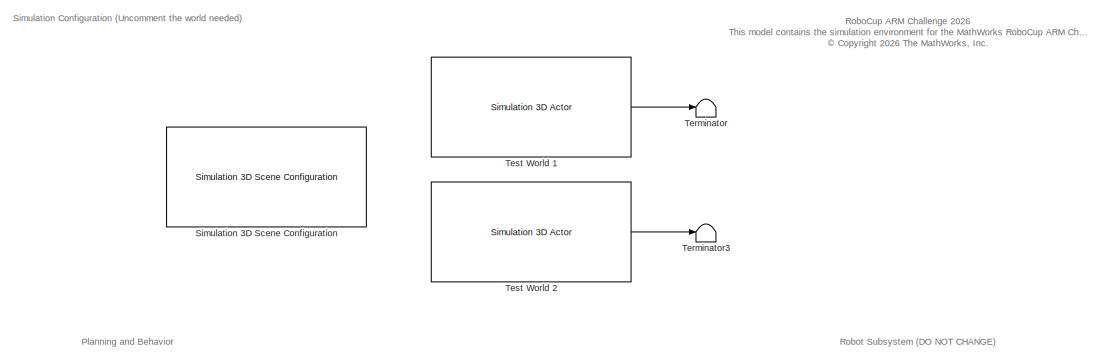
[diagram: root canvas - part 1/4, top left region]
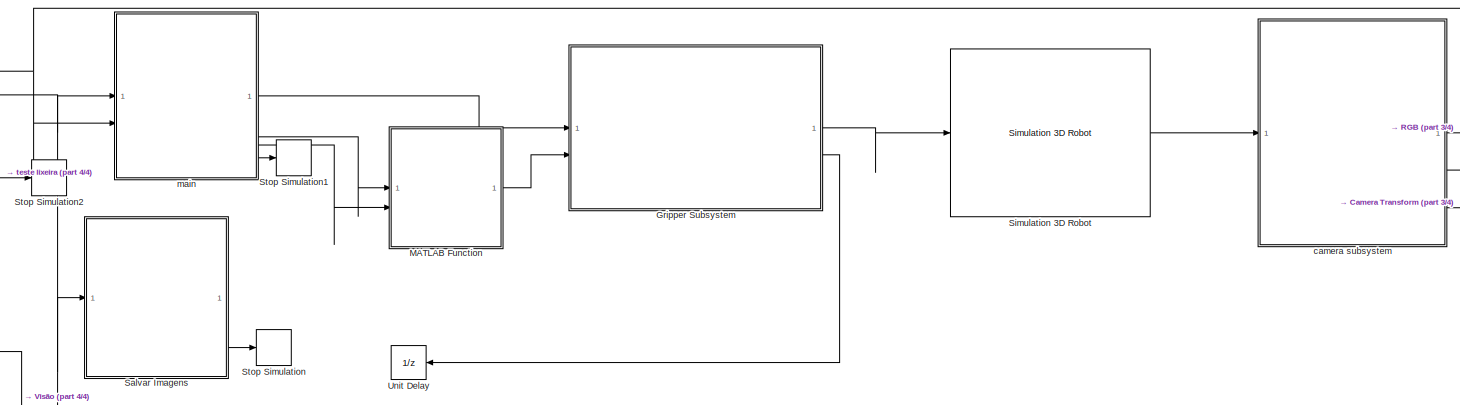
[diagram: root canvas - part 2/4, central region]
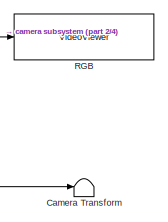
[diagram: root canvas - part 3/4, middle right region]
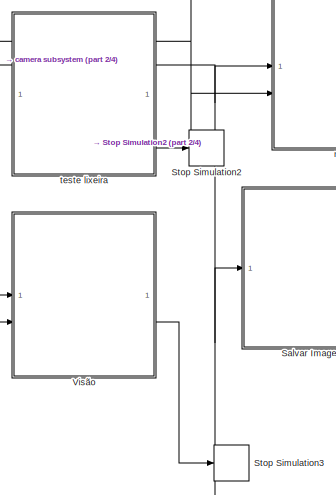
[diagram: root canvas - part 4/4, bottom left region]
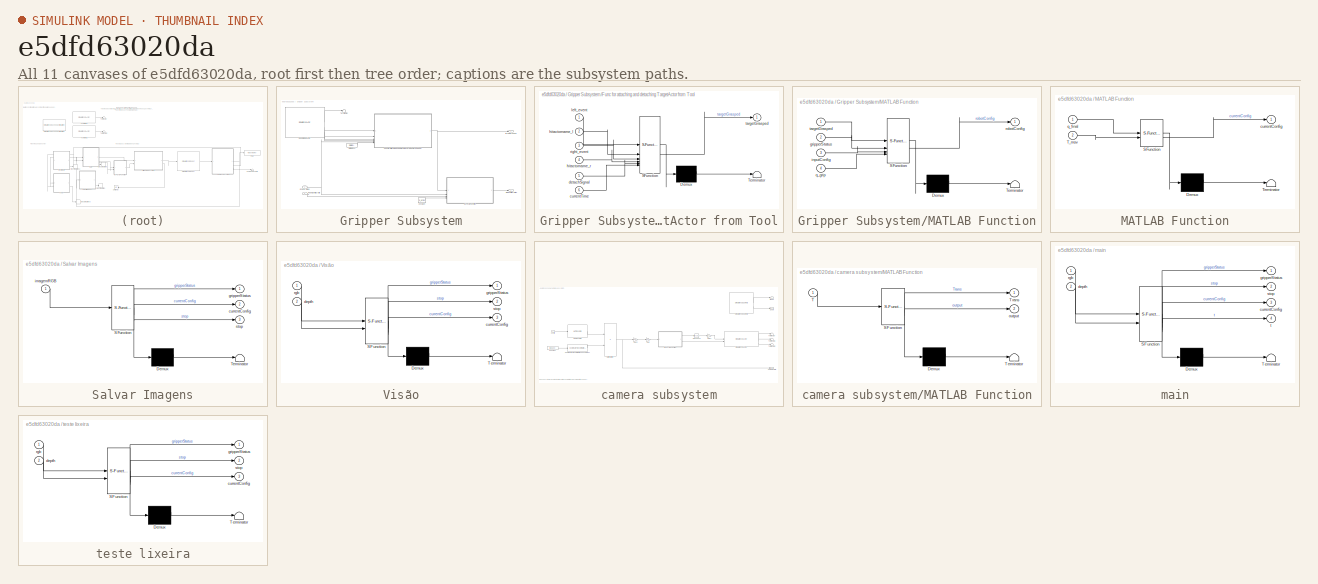
[diagram: thumbnail index - all 11 canvases of the model, root first then tree order]
MODEL slx_e5dfd63020da
KIND model
CONFIG AbsTol = auto
CONFIG EnableMultiTasking = off
CONFIG FixedStep = 0.01
CONFIG MaxStep = auto
CONFIG MinStep = auto
CONFIG RelTol = 1e-3
CONFIG SampleTimeConstraint = Unconstrained
CONFIG SolverName = FixedStepAuto
CONFIG StartFcn = clear attachToRobot\nclear attachToTool
CONFIG StartTime = 0.0
CONFIG StopTime = Inf
BLOCK [Terminator] Camera Transform
BLOCK [SubSystem] Gripper Subsystem
BLOCK [Constant] Gripper Subsystem/Constant
  Value = q_grip1
BLOCK [DigitalClock] Gripper Subsystem/Digital Clock
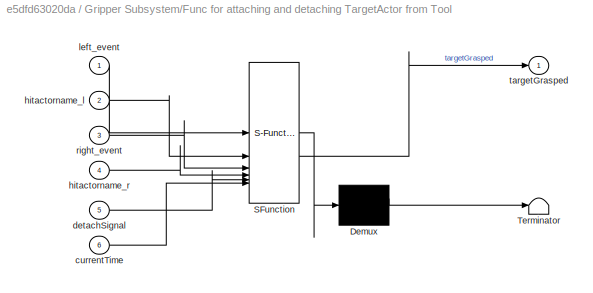
BLOCK [SubSystem] Gripper Subsystem/Func for attaching and detaching TargetActor from Tool
  ErrorFcn = Stateflow.Translate.translate
  PermitHierarchicalResolution = ExplicitOnly
  SFBlockType = MATLAB Function
  TreatAsAtomicUnit = on
BLOCK [Demux] Gripper Subsystem/Func for attaching and detaching TargetActor from Tool/ Demux 
  Outputs = 1
BLOCK [S-Function] Gripper Subsystem/Func for attaching and detaching TargetActor from Tool/ SFunction 
  EnableBusSupport = off
  FunctionName = sf_sfun
  PortCounts = [6 2]
  SFcnIsStateOwnerBlock = off
  SFunctionDeploymentMode = off
  Tag = Stateflow S-Function 2
BLOCK [Terminator] Gripper Subsystem/Func for attaching and detaching TargetActor from Tool/ Terminator 
BLOCK [Inport] Gripper Subsystem/Func for attaching and detaching TargetActor from Tool/currentTime
  Port = 6
BLOCK [Inport] Gripper Subsystem/Func for attaching and detaching TargetActor from Tool/detachSignal
  Port = 5
BLOCK [Inport] Gripper Subsystem/Func for attaching and detaching TargetActor from Tool/hitactorname_l
  Port = 2
BLOCK [Inport] Gripper Subsystem/Func for attaching and detaching TargetActor from Tool/hitactorname_r
  Port = 4
BLOCK [Inport] Gripper Subsystem/Func for attaching and detaching TargetActor from Tool/left_event
BLOCK [Inport] Gripper Subsystem/Func for attaching and detaching TargetActor from Tool/right_event
  Port = 3
BLOCK [Outport] Gripper Subsystem/Func for attaching and detaching TargetActor from Tool/targetGrasped
BLOCK [Inport] Gripper Subsystem/Gripper Status
BLOCK [SubSystem] Gripper Subsystem/MATLAB Function
  ErrorFcn = Stateflow.Translate.translate
  PermitHierarchicalResolution = ExplicitOnly
  SFBlockType = MATLAB Function
  TreatAsAtomicUnit = on
BLOCK [Demux] Gripper Subsystem/MATLAB Function/ Demux 
  Outputs = 1
BLOCK [S-Function] Gripper Subsystem/MATLAB Function/ SFunction 
  EnableBusSupport = off
  FunctionName = sf_sfun
  PortCounts = [4 2]
  SFcnIsStateOwnerBlock = off
  SFunctionDeploymentMode = off
  Tag = Stateflow S-Function 1
BLOCK [Terminator] Gripper Subsystem/MATLAB Function/ Terminator 
BLOCK [Inport] Gripper Subsystem/MATLAB Function/gripperStatus
  Port = 2
BLOCK [Inport] Gripper Subsystem/MATLAB Function/inputConfig
  Port = 3
BLOCK [Inport] Gripper Subsystem/MATLAB Function/q_grip
  Port = 4
BLOCK [Outport] Gripper Subsystem/MATLAB Function/robotConfig
BLOCK [Inport] Gripper Subsystem/MATLAB Function/targetGrasped
BLOCK [Inport] Gripper Subsystem/Robot Configuration
  Port = 2
BLOCK [Reference] Gripper Subsystem/Robot Sim3D Actor  REF=sim3dlib/Simulation 3D Actor
  LibrarySourceBlock = sl3dlib/Simulation 3D/Actors/Simulation 3D Actor
  Priority = 1
  SourceBlock = sim3dlib/Simulation 3D Actor
  SourceType = Simulation 3D Actor
BLOCK [Terminator] Gripper Subsystem/Terminator
BLOCK [Outport] Gripper Subsystem/joint configuration
BLOCK [Outport] Gripper Subsystem/targetGrasped
  Port = 2
BLOCK [SubSystem] MATLAB Function
  ErrorFcn = Stateflow.Translate.translate
  PermitHierarchicalResolution = ExplicitOnly
  SFBlockType = MATLAB Function
  TreatAsAtomicUnit = on
BLOCK [Demux] MATLAB Function/ Demux 
  Outputs = 1
BLOCK [S-Function] MATLAB Function/ SFunction 
  EnableBusSupport = off
  FunctionName = sf_sfun
  PortCounts = [2 2]
  SFcnIsStateOwnerBlock = off
  SFunctionDeploymentMode = off
  Tag = Stateflow S-Function 8
BLOCK [Terminator] MATLAB Function/ Terminator 
BLOCK [Inport] MATLAB Function/T_mov
  Port = 2
BLOCK [Outport] MATLAB Function/currentConfig
BLOCK [Inport] MATLAB Function/q_final
BLOCK [VideoViewer] RGB 
  FigPos = [3351 478 418 304]
  ScopeSpecificationString = vipscopes.VideoViewerScopeCfg('CurrentConfiguration', extmgr.ConfigurationSet(extmgr.Configuration('Core','General UI',true),extmgr.Configuration('Core','Source UI',true),extmgr.Configuration('Sources','WiredSimulink',true),extmgr.Configuration('Visuals','Video',true),extmgr.Configuration('Tools','Image Navigation Tools',true,'Magnification',0.325),extmgr.Configuration('Tools','Image Tool',true),e...<+124ch>
  colormapValue = gray(256)
BLOCK [SubSystem] Salvar Imagens
  Commented = on
  ErrorFcn = Stateflow.Translate.translate
  PermitHierarchicalResolution = ExplicitOnly
  SFBlockType = Chart
  TreatAsAtomicUnit = on
BLOCK [Demux] Salvar Imagens/ Demux 
  Outputs = 1
BLOCK [S-Function] Salvar Imagens/ SFunction 
  EnableBusSupport = off
  FunctionName = sf_sfun
  PortCounts = [1 4]
  SFcnIsStateOwnerBlock = off
  SFunctionDeploymentMode = off
  Tag = Stateflow S-Function 4
BLOCK [Terminator] Salvar Imagens/ Terminator 
BLOCK [Outport] Salvar Imagens/currentConfig
  Port = 2
BLOCK [Outport] Salvar Imagens/gripperStatus
BLOCK [Inport] Salvar Imagens/imagemRGB
BLOCK [Outport] Salvar Imagens/stop
  Port = 3
BLOCK [Reference] Simulation 3D Robot  REF=robotsim3dlib/Simulation 3D Robot
  SourceBlock = robotsim3dlib/Simulation 3D Robot
  SourceType = Simulation 3D Robot
BLOCK [Reference] Simulation 3D Scene Configuration  REF=sim3dlib/Simulation 3D Scene Configuration
  LibrarySourceBlock = sl3dlib/Simulation 3D/Environment/Simulation 3D Scene Configuration
  Priority = 0
  SourceBlock = sim3dlib/Simulation 3D Scene Configuration
  SourceType = Simulation 3D Scene Configuration
BLOCK [Stop] Stop Simulation
  Commented = on
BLOCK [Stop] Stop Simulation1
BLOCK [Stop] Stop Simulation2
BLOCK [Stop] Stop Simulation3
BLOCK [Terminator] Terminator
BLOCK [Terminator] Terminator3
  Commented = on
BLOCK [Reference] Test World 1  REF=sim3dlib/Simulation 3D Actor
  LibrarySourceBlock = sl3dlib/Simulation 3D/Actors/Simulation 3D Actor
  Priority = 1
  SourceBlock = sim3dlib/Simulation 3D Actor
  SourceType = Simulation 3D Actor
BLOCK [Reference] Test World 2  REF=sim3dlib/Simulation 3D Actor
  Commented = on
  LibrarySourceBlock = sl3dlib/Simulation 3D/Actors/Simulation 3D Actor
  Priority = 1
  SourceBlock = sim3dlib/Simulation 3D Actor
  SourceType = Simulation 3D Actor
BLOCK [UnitDelay] Unit Delay
  HasFrameUpgradeWarning = on
  SampleTime = -1
BLOCK [SubSystem] Visão
  Commented = on
  ErrorFcn = Stateflow.Translate.translate
  PermitHierarchicalResolution = ExplicitOnly
  PortSchema = {"entries":[{"content":{"sides":[{"content":{"connectorIds":["In1","In2"]},"type":"ConnectorPlacement.EquallySpacedRectSide","uuid":"4d732dd7-062d-4689-9f8b-43f99dfb8420"},{"content":{"connectorIds":["Out1","Out3","Out2"],"side":"RIGHT"},"type":"ConnectorPlacement.EquallySpacedRectSide","uuid":"91537844-c947-4718-a544-564235b069fc"},{"content":{"side":"TOP"},"type":"ConnectorPlacement.EquallySpace...<+368ch>
  SFBlockType = Chart
  TreatAsAtomicUnit = on
BLOCK [Demux] Visão/ Demux 
  Outputs = 1
BLOCK [S-Function] Visão/ SFunction 
  EnableBusSupport = off
  FunctionName = sf_sfun
  PortCounts = [2 4]
  SFcnIsStateOwnerBlock = off
  SFunctionDeploymentMode = off
  Tag = Stateflow S-Function 7
BLOCK [Terminator] Visão/ Terminator 
BLOCK [Outport] Visão/currentConfig
  Port = 3
BLOCK [Inport] Visão/depth
  Port = 2
BLOCK [Outport] Visão/gripperStatus
BLOCK [Inport] Visão/rgb
BLOCK [Outport] Visão/stop
  Port = 2
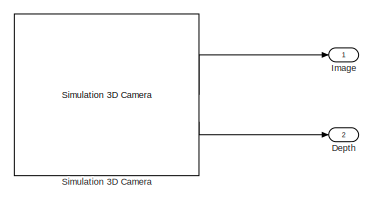
[diagram: camera subsystem - part 1/4, top right region]
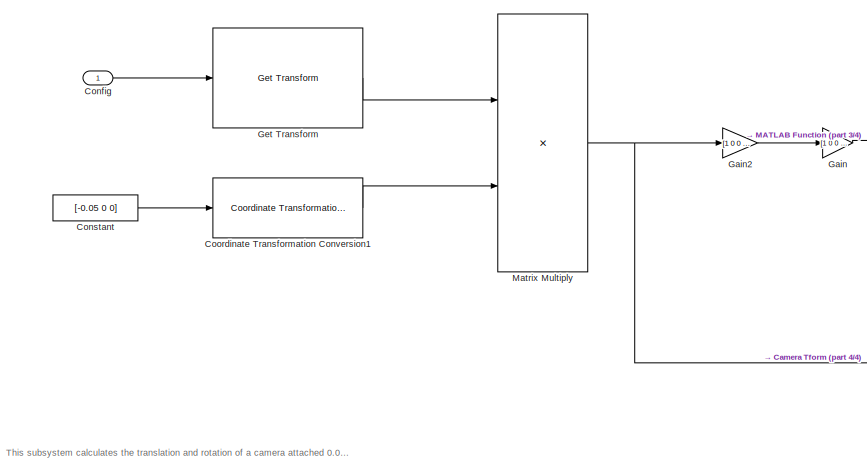
[diagram: camera subsystem - part 2/4, bottom left region]
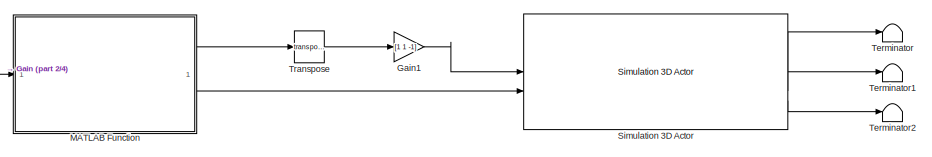
[diagram: camera subsystem - part 3/4, middle right region]
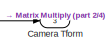
[diagram: camera subsystem - part 4/4, bottom right region]
BLOCK [SubSystem] camera subsystem
BLOCK [Outport] camera subsystem/Camera Tform
  Port = 3
BLOCK [Inport] camera subsystem/Config
BLOCK [Constant] camera subsystem/Constant
  Value = [-0.05 0 0]
BLOCK [Reference] camera subsystem/Coordinate Transformation Conversion1  REF=robotcorelib/Coordinate Transformation Conversion
  LibrarySourceBlock = navlib/Utilities/Coordinate Transformation Conversion
  SourceBlock = robotcorelib/Coordinate Transformation Conversion
  SourceType = robotics.slcore.internal.block.CoordinateTransformationConversion
BLOCK [Outport] camera subsystem/Depth
  Port = 2
BLOCK [Gain] camera subsystem/Gain
  Gain = [1 0 0 0; 0 -1 0 0; 0 0 -1 0; 0 0 0 1]
  Multiplication = Matrix(u*K)
BLOCK [Gain] camera subsystem/Gain1
  Gain = [1 1 -1]
BLOCK [Gain] camera subsystem/Gain2
  Gain = [1 0 0 0; 0 -1 0 0; 0 0 -1 0; 0 0 0 1]
  Multiplication = Matrix(K*u)
BLOCK [Reference] camera subsystem/Get Transform  REF=robotmaniplib/Get Transform
  SourceBlock = robotmaniplib/Get Transform
  SourceType = Get Transform
BLOCK [Outport] camera subsystem/Image
BLOCK [SubSystem] camera subsystem/MATLAB Function
  ErrorFcn = Stateflow.Translate.translate
  PermitHierarchicalResolution = ExplicitOnly
  SFBlockType = MATLAB Function
  TreatAsAtomicUnit = on
BLOCK [Demux] camera subsystem/MATLAB Function/ Demux 
  Outputs = 1
BLOCK [S-Function] camera subsystem/MATLAB Function/ SFunction 
  EnableBusSupport = off
  FunctionName = sf_sfun
  PortCounts = [1 3]
  SFcnIsStateOwnerBlock = off
  SFunctionDeploymentMode = off
  Tag = Stateflow S-Function 5
BLOCK [Terminator] camera subsystem/MATLAB Function/ Terminator 
BLOCK [Inport] camera subsystem/MATLAB Function/T
BLOCK [Outport] camera subsystem/MATLAB Function/Trans
BLOCK [Outport] camera subsystem/MATLAB Function/output
  Port = 2
BLOCK [Product] camera subsystem/Matrix Multiply
  Multiplication = Matrix(*)
BLOCK [Reference] camera subsystem/Simulation 3D Actor  REF=sim3dlib/Simulation 3D Actor
  LibrarySourceBlock = sl3dlib/Simulation 3D/Actors/Simulation 3D Actor
  Priority = 1
  SourceBlock = sim3dlib/Simulation 3D Actor
  SourceType = Simulation 3D Actor
BLOCK [Reference] camera subsystem/Simulation 3D Camera  REF=sim3dcameralib/Simulation 3D Camera
  LibrarySourceBlock = sl3dlib/Simulation 3D/Sensors/Simulation 3D Camera
  Priority = 1
  SourceBlock = sim3dcameralib/Simulation 3D Camera
  SourceType = Simulation 3D Camera
BLOCK [Terminator] camera subsystem/Terminator
BLOCK [Terminator] camera subsystem/Terminator1
BLOCK [Terminator] camera subsystem/Terminator2
BLOCK [Math] camera subsystem/Transpose
  Operator = transpose
BLOCK [SubSystem] main
  ErrorFcn = Stateflow.Translate.translate
  PermitHierarchicalResolution = ExplicitOnly
  PortSchema = {"entries":[{"content":{"sides":[{"content":{"connectorIds":["In1","In2"]},"type":"ConnectorPlacement.EquallySpacedRectSide","uuid":"4d732dd7-062d-4689-9f8b-43f99dfb8420"},{"content":{"connectorIds":["Out1","Out3","Out4","Out2"],"side":"RIGHT"},"type":"ConnectorPlacement.EquallySpacedRectSide","uuid":"91537844-c947-4718-a544-564235b069fc"},{"content":{"side":"TOP"},"type":"ConnectorPlacement.Equal...<+249ch>
  SFBlockType = Chart
  TreatAsAtomicUnit = on
BLOCK [Demux] main/ Demux 
  Outputs = 1
BLOCK [S-Function] main/ SFunction 
  EnableBusSupport = off
  FunctionName = sf_sfun
  PortCounts = [2 5]
  SFcnIsStateOwnerBlock = off
  SFunctionDeploymentMode = off
  Tag = Stateflow S-Function 6
BLOCK [Terminator] main/ Terminator 
BLOCK [Outport] main/currentConfig
  Port = 3
BLOCK [Inport] main/depth
  Port = 2
BLOCK [Outport] main/gripperStatus
BLOCK [Inport] main/rgb
BLOCK [Outport] main/stop
  Port = 2
BLOCK [Outport] main/t
  Port = 4
BLOCK [SubSystem] teste lixeira
  Commented = on
  ErrorFcn = Stateflow.Translate.translate
  PermitHierarchicalResolution = ExplicitOnly
  PortSchema = {"entries":[{"content":{"sides":[{"content":{"connectorIds":["In1","In2"]},"type":"ConnectorPlacement.EquallySpacedRectSide","uuid":"4d732dd7-062d-4689-9f8b-43f99dfb8420"},{"content":{"connectorIds":["Out1","Out3","Out2"],"side":"RIGHT"},"type":"ConnectorPlacement.EquallySpacedRectSide","uuid":"91537844-c947-4718-a544-564235b069fc"},{"content":{"side":"TOP"},"type":"ConnectorPlacement.EquallySpace...<+242ch>
  SFBlockType = Chart
  TreatAsAtomicUnit = on
BLOCK [Demux] teste lixeira/ Demux 
  Outputs = 1
BLOCK [S-Function] teste lixeira/ SFunction 
  EnableBusSupport = off
  FunctionName = sf_sfun
  PortCounts = [2 4]
  SFcnIsStateOwnerBlock = off
  SFunctionDeploymentMode = off
  Tag = Stateflow S-Function 3
BLOCK [Terminator] teste lixeira/ Terminator 
BLOCK [Outport] teste lixeira/currentConfig
  Port = 3
BLOCK [Inport] teste lixeira/depth
  Port = 2
BLOCK [Outport] teste lixeira/gripperStatus
BLOCK [Inport] teste lixeira/rgb
BLOCK [Outport] teste lixeira/stop
  Port = 2
ANNOTATION (root): RoboCup ARM Challenge 2026 This model contains the simulation environment for the MathWorks RoboCup ARM Challenge 2026. <copyright redacted>
ANNOTATION (root): Planning and Behavior
ANNOTATION (root): Robot Subsystem (DO NOT CHANGE)
ANNOTATION (root): Simulation Configuration (Uncomment the world needed)
ANNOTATION camera subsystem: This subsystem calculates the translation and rotation of a camera attached 0.05m above the gripper. This is done by calculating the gripper position with forward kinematics and adding the offset for the camera position
LINE Gripper Subsystem/Constant:1 -> Gripper Subsystem/MATLAB Function:4
LINE Gripper Subsystem/Digital Clock:1 -> Gripper Subsystem/Func for attaching and detaching TargetActor from Tool:6
NET Gripper Subsystem/Func for attaching and detaching TargetActor from Tool:1 -> Gripper Subsystem/MATLAB Function:1, Gripper Subsystem/targetGrasped:1
NET Gripper Subsystem/Gripper Status:1 -> Gripper Subsystem/Func for attaching and detaching TargetActor from Tool:5, Gripper Subsystem/MATLAB Function:2
LINE Gripper Subsystem/MATLAB Function:1 -> Gripper Subsystem/joint configuration:1
LINE Gripper Subsystem/Robot Configuration:1 -> Gripper Subsystem/MATLAB Function:3
LINE Gripper Subsystem/Robot Sim3D Actor:1 -> Gripper Subsystem/Terminator:1
LINE Gripper Subsystem/Robot Sim3D Actor:2 -> Gripper Subsystem/Func for attaching and detaching TargetActor from Tool:1
LINE Gripper Subsystem/Robot Sim3D Actor:3 -> Gripper Subsystem/Func for attaching and detaching TargetActor from Tool:2
LINE Gripper Subsystem/Robot Sim3D Actor:4 -> Gripper Subsystem/Func for attaching and detaching TargetActor from Tool:3
LINE Gripper Subsystem/Robot Sim3D Actor:5 -> Gripper Subsystem/Func for attaching and detaching TargetActor from Tool:4
LINE Gripper Subsystem:1 -> Simulation 3D Robot:1
LINE Gripper Subsystem:2 -> Unit Delay:1
LINE MATLAB Function:1 -> Gripper Subsystem:2
LINE Salvar Imagens:3 -> Stop Simulation:1
LINE Simulation 3D Robot:1 -> camera subsystem:1
LINE Test World 1:1 -> Terminator:1
LINE Test World 2:1 -> Terminator3:1
LINE Visão:2 -> Stop Simulation3:1
LINE camera subsystem/Config:1 -> camera subsystem/Get Transform:1
LINE camera subsystem/Constant:1 -> camera subsystem/Coordinate Transformation Conversion1:1
LINE camera subsystem/Coordinate Transformation Conversion1:1 -> camera subsystem/Matrix Multiply:2
LINE camera subsystem/Gain1:1 -> camera subsystem/Simulation 3D Actor:1
LINE camera subsystem/Gain2:1 -> camera subsystem/Gain:1
LINE camera subsystem/Gain:1 -> camera subsystem/MATLAB Function:1
LINE camera subsystem/Get Transform:1 -> camera subsystem/Matrix Multiply:1
LINE camera subsystem/MATLAB Function:1 -> camera subsystem/Transpose:1
LINE camera subsystem/MATLAB Function:2 -> camera subsystem/Simulation 3D Actor:2
NET camera subsystem/Matrix Multiply:1 -> camera subsystem/Camera Tform:1, camera subsystem/Gain2:1
LINE camera subsystem/Simulation 3D Actor:1 -> camera subsystem/Terminator:1
LINE camera subsystem/Simulation 3D Actor:2 -> camera subsystem/Terminator1:1
LINE camera subsystem/Simulation 3D Actor:3 -> camera subsystem/Terminator2:1
LINE camera subsystem/Simulation 3D Camera:1 -> camera subsystem/Image:1
LINE camera subsystem/Simulation 3D Camera:2 -> camera subsystem/Depth:1
LINE camera subsystem/Transpose:1 -> camera subsystem/Gain1:1
NET camera subsystem:1 -> RGB :1, Salvar Imagens:1, Visão:1, main:1
NET camera subsystem:2 -> Visão:2, main:2
LINE camera subsystem:3 -> Camera Transform:1
LINE main:1 -> Gripper Subsystem:1
LINE main:2 -> Stop Simulation1:1
LINE main:3 -> MATLAB Function:1
LINE main:4 -> MATLAB Function:2
LINE teste lixeira:2 -> Stop Simulation2:1
note: NET lines group one-source signal fan-out (src -> all destinations, sorted); 1:1 wires keep LINE
CHART Gripper Subsystem/MATLAB Function states=1 transitions=1
  STATE_LABEL 'eML_blk_kernel()'
  STATE_LABEL "SCRIPT:\nfunction robotConfig = appendGripper(targetGrasped, gripperStatus, inputConfig, q_grip)\n\npersistent index\nif isempty(index)\n    index = 1;\nend\n\n% Open gripper\nif ~gripperStatus\n    openConfig = [0 0 0 0 0 0]';\n    robotConfig = [inputConfig; openConfig]';\n    index = 1;\nelse\n    if index > size(q_grip, 2)\n        robotConfig = [inputConfig; q_grip(:, index-1)]';\n        index = 1;\n    else...<+178ch>"
CHART Gripper Subsystem/Func for attaching and detaching TargetActor from Tool states=1 transitions=1
  STATE_LABEL 'eML_blk_kernel()'
  STATE_LABEL 'SCRIPT:\n function targetGrasped = attachToRobot(left_event, hitactorname_l, right_event, hitactorname_r, detachSignal, currentTime)\n    \n    persistent l_time r_time grasped;\n    if isempty(l_time)\n        l_time = 0;\n    end\n\n    if isempty(r_time)\n        r_time = 1;\n    end\n\n    if left_event\n        l_time = currentTime;\n    end\n\n    if right_event\n        r_time = currentTime;\n    end\n    \n  ...<+292ch>'
CHART teste lixeira states=11 transitions=8
  STATE_LABEL 'start\nen:\ncurrentConfig = [0; -pi/2; 0; 0; -pi/2; pi/2];\ngripperStatus = 0;\nstop = false;\narea = 3;\nbest_label = 1;'
  STATE_LABEL '[best_box, best_label] = detector(imgRGB)'
  STATE_LABEL "SCRIPT:\nfunction [best_box, best_label] = detector(imgRGB)\n\n    % 1. Pre-alocação (Crucial para o Simulink)\n    % Dizemos ao Simulink o tamanho e o tipo dos dados que vão sair do bloco\n    best_box = zeros(1, 4, 'double');\n    best_label = zeros(1, 1, 'double'); % O Simulink prefere trabalhar com números, não com textos\n    \n    % 2. Declaração de funções externas\n    % Avisa ao gerador de código ...<+1159ch>"
  STATE_LABEL 'currentConfig = pose(pos_alvo)'
  STATE_LABEL "SCRIPT:\nfunction currentConfig = pose(pos_alvo)\n   \n    % Chamando cinemática inversa\n    coder.extrinsic('cinematica_inversa_generica');\n    \n    %Chute inicial\n    chute_inicial = [0, -pi/2, 0, 0, -pi/2, 0];\n\n    % Pré-aloca a variável\n    config_calculada = zeros(1, 6); \n    \n    % Chama a sua função para encontrar os ângulos das juntas\n    config_calculada = cinematica_inversa_generica(pos_alv...<+193ch>"
  STATE_LABEL 'r = posicionart(best_box, h)'
  STATE_LABEL "SCRIPT:\nfunction r = posicionart(best_box, h)\n    % 1. Inicializa a saída (Padrão Simulink)\n    r = zeros(1, 3, 'double');\n    \n    % 2. Parâmetros intrínsecos da câmera (extraídos do seu print)\n    fx = 1109.0;\n    fy = 1109.0;\n    cx = 640.0;\n    cy = 360.0;\n    \n    % Se a caixa estiver vazia (todos zeros), retorna [0 0 0] e encerra\n    if all(best_box == 0)\n        return;\n    end\n    \n    % 3...<+897ch>"
  STATE_LABEL 'posicao_inicial\nen:\nr = [ 0 0.5 0.1]\ncurrentConfig = pose(r)'
  STATE_LABEL '[best_box, best_label] = detector2(imgRGB)'
  STATE_LABEL "SCRIPT:\nfunction [best_box, best_label] = detector2(imgRGB)\n\n    % 1. Pre-alocação (Crucial para o Simulink)\n    % Dizemos ao Simulink o tamanho e o tipo dos dados que vão sair do bloco\n    best_box = zeros(1, 4, 'double');\n    best_label = zeros(1, 1, 'double'); % O Simulink prefere trabalhar com números, não com textos\n    \n    % 2. Declaração de funções externas\n    % Avisa ao gerador de código...<+1160ch>"
  STATE_LABEL 'levantar\nen:\nr(3) = 0.5;\ncurrentConfig = pose(r);'
  STATE_LABEL 'centro\nen:\nr = [ 0 0.5 0.5]\ncurrentConfig = pose(r);'
  STATE_LABEL 'lixo_azul\nen:\nr = [ -0.5 -0.3 0.5]\ncurrentConfig = pose(r);'
  STATE_LABEL 'lixo_verde\nen:\nr = [ -0.5 0.3 0.5]\ncurrentConfig = pose(r);'
  STATE_LABEL 'soltar'
CHART Salvar Imagens states=4 transitions=3
  STATE_LABEL '[gripperStatus, currentConfig, stop] = main'
  STATE_LABEL "SCRIPT:\nfunction [gripperStatus, currentConfig, stop] = main()\n    % 1. DECLARAÇÕES INICIAIS\n    % Permite chamar a sua função externa de cinemática inversa no Simulink\n    coder.extrinsic('cinematica_inversa_generica');\n    \n    % 2. GERAÇÃO DA POSIÇÃO ALEATÓRIA ALVO\n    % rand() gera um valor entre 0 e 1.\n    x = 0.6 * rand();         % x no intervalo (-0.6, 0.6)\n    y = -0.6 + (1.2 * rand());% ...<+813ch>"
  STATE_LABEL 'Movendo\nen:\n[gripperStatus, currentConfig, stop] = main();'
  STATE_LABEL 'Salvando\nen:\nsalvarImagemRGB(imagemRGB);'
  STATE_LABEL 'salvarImagemRGB(imagemRGB)'
  STATE_LABEL "SCRIPT:\nfunction salvarImagemRGB(imagemRGB)\n    coder.extrinsic('salvarImagemScript');\n    salvarImagemScript(imagemRGB);\nend"
CHART camera subsystem/MATLAB Function states=1 transitions=1
  STATE_LABEL 'eML_blk_kernel()'
  STATE_LABEL 'SCRIPT:\nfunction [Trans, output] = rotm2fixedZYX(T)\n    R = T(1:3,1:3);\n    Trans = T(1:3,4);\n    if abs(R(3,1)) < 1\n        pitch = -asin(R(3,1));\n        roll  = atan2(R(3,2)/cos(pitch), R(3,3)/cos(pitch));\n        yaw   = atan2(R(2,1)/cos(pitch), R(1,1)/cos(pitch));\n    else\n        % Gimbal lock\n        if R(3,1) <= -1\n            pitch = pi/2;\n        else\n            pitch = -pi/2;\n        e...<+104ch>'
CHART main states=22 transitions=27
  STATE_LABEL 'start\nen:\ncurrentConfig = [0; -pi/2; 0; 0; -pi/2; pi/2];\ngripperStatus = 0;\nstop = false;\narea = 1;\nt = 3;\n'
  STATE_LABEL '[currentConfig, pos_atual, chute_inicial] = pose(pos_alvo, chute_inicial, peso_pos, peso_ori, ang)'
  STATE_LABEL "SCRIPT:\nfunction [currentConfig, pos_atual, chute_inicial] = pose(pos_alvo, chute_inicial, peso_pos, peso_ori, ang)\n\n    % Chute inicial\n    chute = zeros(1,5);\n    chute(1) = chute_inicial(1);\n    chute(2) = chute_inicial(2);\n    chute(3) = chute_inicial(3);\n    chute(4) = chute_inicial(4);\n    chute(5) = chute_inicial(6);\n\n    % Chamando cinemática inversa\n    coder.extrinsic('cinematica_inversa...<+469ch>"
  STATE_LABEL '[tipo, pos_objeto,estado, angulo] = chamar_detector(pos_garra, rgb, depth)'
  STATE_LABEL "SCRIPT:\nfunction [tipo, pos_objeto,estado, angulo] = chamar_detector(pos_garra, rgb, depth)\n\n%#codegen\n\n% ── Saídas inicializadas com tipo e tamanho explícitos ──────────────────\ntipo        = double(0);\nestado      = double(0);\nangulo      = double(0);\npos_objeto  = zeros(1,3);\n\n% ── Declara todas as funções externas ────────────────────────────────────\ncoder.extrinsic('detector_pt');\n\n% ── Chama...<+148ch>"
  STATE_LABEL 'posicao_de_busca\nen:\npos_busca = [\n    0.4 0 0.8; % amarela\n    0.1 0.65 0.6; % cinza 1\n    -0.05 -0.5 0.6; % cinza 3\n    1.35 0 0.8; % vermelho 1\n    1.4 -0.9 0.8; %vermelho 2\n    0.45 -0.8 0.8; % azul\n    0.5 0.65 0.5; % cinza 2\n    ];\npos_garra = pos_busca(area, :);\n[currentConfig, pos_atual,ang_anterior] = pose(pos_garra,currentConfig,0.5,1,0);'
  STATE_LABEL 'h = altura(tipo, estado)'
  STATE_LABEL 'SCRIPT:\nfunction h = altura(tipo, estado)\n    % DEFINIRH Calcula o valor de h com base no tipo e no estado.\n    % tipo: Inteiro de 1 a 6\n    % estado: 0 ou 1\n    \n    switch tipo\n        case 1\n            if estado == 1\n                h = 0.18;\n            else\n                h = 0.15;\n            end\n            \n        case 2\n            if estado == 1\n                h = 0.18;\n            e...<+550ch>'
  STATE_LABEL 'posicionar\nen:\nh = altura(tipo, estado)\npos_garra(3) = pos_objeto(3) + h;\n[currentConfig, pos_atual,ang_anterior] = pose(pos_garra,currentConfig,1,0.001,angulo);\n'
  STATE_LABEL 'levantar\nen:\npos_garra(3) = 0.3;\n[currentConfig, pos_atual,ang_anterior] = pose(pos_garra,currentConfig,1,0.001,0);'
  STATE_LABEL 'Fechar_garra\nen:\ngripperStatus = 1;\n'
  STATE_LABEL 'posicionar_em_cima\nen:\npos_garra = pos_objeto;\npos_garra(3) = 0.3;\n[currentConfig, pos_atual,ang_anterior] = pose(pos_garra,currentConfig,1,0.001,angulo);'
  STATE_LABEL 'Procurando\nen:\n%salvarImagemRGB(rgb)\n[tipo, pos_objeto,estado, angulo] = chamar_detector(pos_atual, rgb, depth);'
  STATE_LABEL 'lixo_verde\nen:\npos_garra = [ -0.5 -0.3 0.5]\n[currentConfig, pos_atual,ang_anterior] = pose(pos_garra,currentConfig,1,1,0);'
  STATE_LABEL 'lixo_verde1\nen:\npos_garra = [ -0.05 -0.5 0.6]\n[currentConfig, pos_atual,ang_anterior] = pose(pos_garra,currentConfig,1,1,0);'
  STATE_LABEL 'mudar_de_area\nen:\narea = area +1;'
  STATE_LABEL 'soltar\nen:\ngripperStatus = 0;\n'
  STATE_LABEL 'lixo_azul1\nen:\npos_garra = [ -0.05 0.5 0.6]\n[currentConfig, pos_atual,ang_anterior] = pose(pos_garra,currentConfig,1,1,0);'
  STATE_LABEL 'lixo_azul\nen:\npos_garra = [ -0.5 0.3 0.5]\n[currentConfig, pos_atual,ang_anterior] = pose(pos_garra,currentConfig,1,1,0);'
  STATE_LABEL 'stop\nen:\nstop = true;\n'
  STATE_LABEL 'balanca1\nen:\npos_garra = [ 1.20 0.6 0.3]\n[currentConfig, pos_atual,ang_anterior] = pose(pos_garra,currentConfig,1,1,0);'
  STATE_LABEL 'descer\nen:\npos_garra = [ 1.20 0.65 0.15]\n[currentConfig, pos_atual,ang_anterior] = pose(pos_garra,currentConfig,1,1,0);'
  STATE_LABEL 'levantar8\nen:\npos_garra(3) = 0.3;\n[currentConfig, pos_atual,ang_anterior] = pose(pos_garra,currentConfig,1,1,0);'
  STATE_LABEL 'Fechar_garra1\nen:\ngripperStatus = 1;\n'
  STATE_LABEL 'soltar1\nen:\ngripperStatus = 0;\n'
CHART Visão states=7 transitions=4
  STATE_LABEL 'start\nen:\ncurrentConfig = [0; -pi/2; 0; 0; -pi/2; pi/2];\ngripperStatus = 0;\nstop = false;\narea = 3;\n'
  STATE_LABEL 'currentConfig = pose(pos_alvo)'
  STATE_LABEL "SCRIPT:\nfunction currentConfig = pose(pos_alvo)\n   \n    % Chamando cinemática inversa\n    coder.extrinsic('cinematica_inversa_generica');\n    \n    %Chute inicial\n    chute_inicial = [0, -pi/2, 0, 0, -pi/2, 0];\n\n    % Pré-aloca a variável\n    config_calculada = zeros(1, 6); \n    \n    % Chama a sua função para encontrar os ângulos das juntas\n    config_calculada = cinematica_inversa_generica(pos_alv...<+193ch>"
  STATE_LABEL 'posicao_de_busca\nen:\nr =[1.4 -0.9 0.8];\ncurrentConfig = pose(r);\n'
  STATE_LABEL '[tipo, pos_objeto,estado, angulo] = chamar_detector(pos_garra, rgb, depth)'
  STATE_LABEL "SCRIPT:\nfunction [tipo, pos_objeto,estado, angulo] = chamar_detector(pos_garra, rgb, depth)\n\n%#codegen\n\n% ── Saídas inicializadas com tipo e tamanho explícitos ──────────────────\ntipo   = 0;\npos_objeto = [0.0, 0.0, 0.0];\n\n% ── Declara todas as funções externas ────────────────────────────────────\ncoder.extrinsic('detector_pt');\n\n% ── Chama o detector ───────────────────────────────────────────────...<+89ch>"
  STATE_LABEL '[tipo, pos_objeto,estado, angulo] = chamar_detector1(pos_garra, rgb, depth)'
  STATE_LABEL "SCRIPT:\nfunction [tipo, pos_objeto,estado, angulo] = chamar_detector1(pos_garra, rgb, depth)\n\n%#codegen\n\n% ── Saídas inicializadas com tipo e tamanho explícitos ──────────────────\ntipo   = 0;\npos_objeto = [0.0, 0.0, 0.0];\n\n% ── Declara todas as funções externas ────────────────────────────────────\ncoder.extrinsic('detector_pt');\n\n% ── Chama o detector ──────────────────────────────────────────────...<+90ch>"
  STATE_LABEL 'vis_o\nen:\nimg = rgb;\n'
  STATE_LABEL 'vision1\nen:\n%[best_bbox, best_score, best_label] = vision(bboxes, scores, labels, depth, rgb)\n[tipo, pos_objeto, estado, angulo] = chamar_detector(r, rgb, depth)'
CHART MATLAB Function states=1 transitions=1
  STATE_LABEL 'eML_blk_kernel()'
  STATE_LABEL 'SCRIPT:\nfunction currentConfig = generateTraj(q_final, T_mov)\n%#codegen\n\n    T_sim = 0.01;\n    N = max(round(T_mov / T_sim), 2);\n\n    persistent alpha;\n    persistent q_atual;\n\n    % Inicializa na primeira chamada\n    if isempty(alpha)\n        alpha = 0;\n    end\n\n    if isempty(q_atual)\n        q_atual = zeros(6, 1);\n    end\n\n    % Reset: q_final == q_atual sinaliza nova trajetória\n    if norm(q_f...<+353ch>'
CHART  states=0 transitions=0
CHART  states=0 transitions=0
CHART  states=0 transitions=0
CHART  states=0 transitions=0
CHART  states=0 transitions=0
CHART  states=0 transitions=0
CHART  states=0 transitions=0
CHART  states=0 transitions=0
